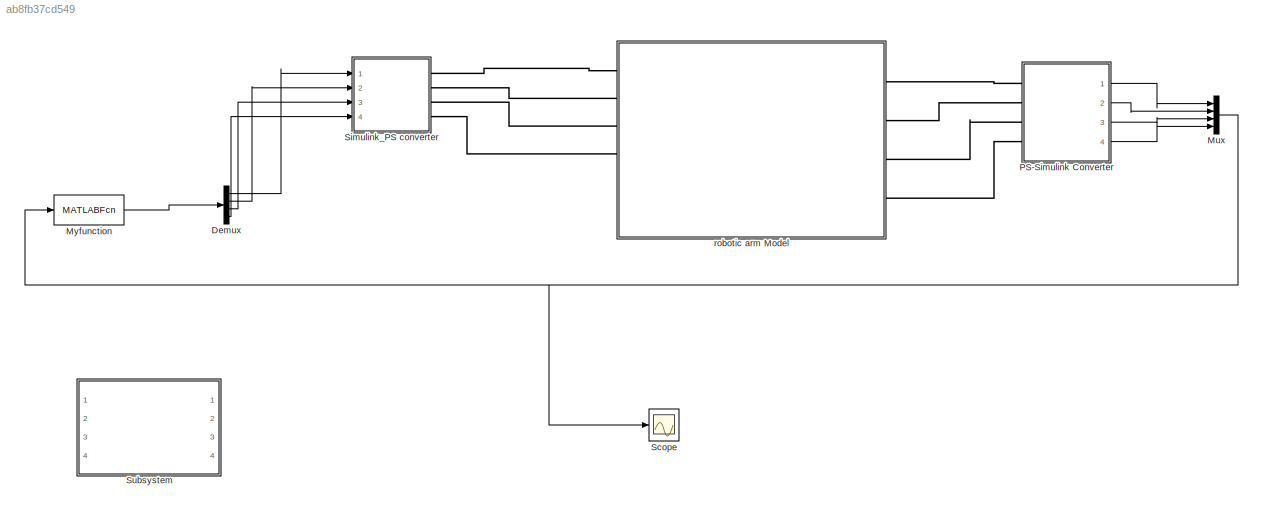
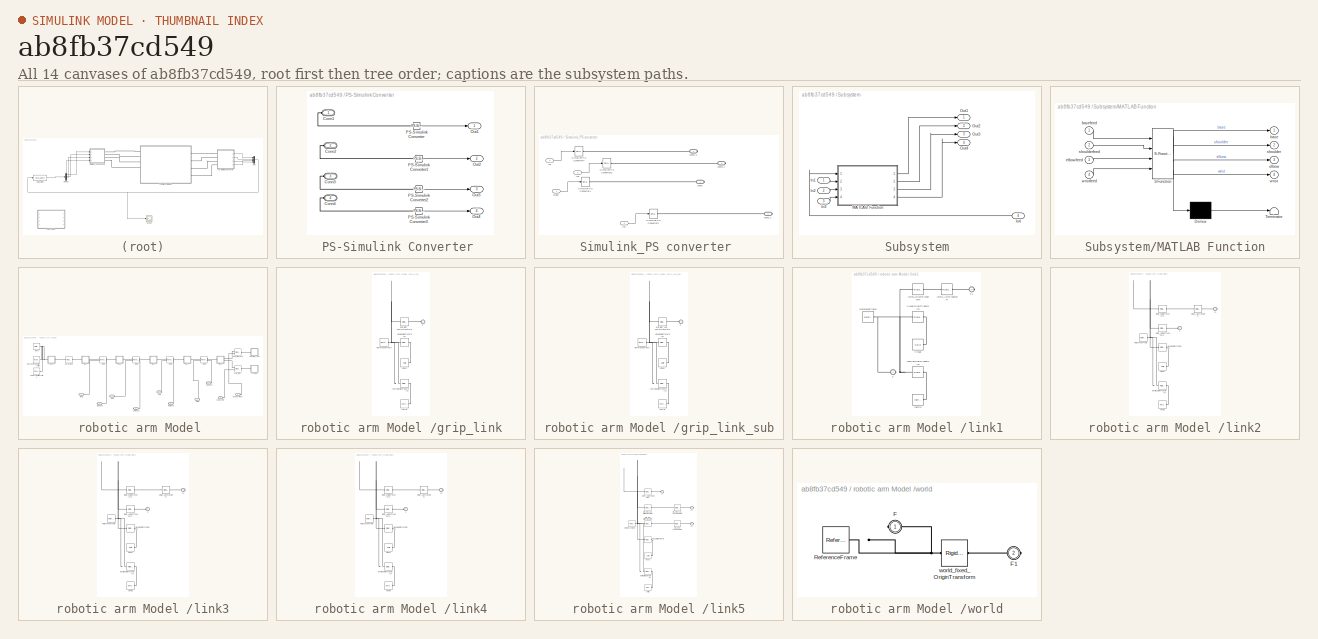
[diagram: thumbnail index - all 14 canvases of the model, root first then tree order]
MODEL slx_ab8fb37cd549
KIND model
CONFIG AbsTol = auto
CONFIG EnableMultiTasking = off
CONFIG FixedStep = auto
CONFIG MaxStep = auto
CONFIG MinStep = auto
CONFIG RelTol = 1e-3
CONFIG SampleTimeConstraint = Unconstrained
CONFIG Solver = VariableStepAuto
CONFIG SolverName = VariableStepAuto
CONFIG StartTime = 0.0
CONFIG StopTime = 10
BLOCK [Demux] Demux
  DisplayOption = bar
  Ports = [1, 4]
BLOCK [Mux] Mux
  DisplayOption = bar
  Ports = [4, 1]
BLOCK [MATLABFcn] Myfunction 
  MATLABFcn = fcn
  Output1D = off
  OutputDimensions = 4
  Ports = [1, 1]
BLOCK [SubSystem] PS-Simulink Converter 
  Ports = [0, 4, 0, 0, 0, 4]
  RequestExecContextInheritance = off
BLOCK [PMIOPort] PS-Simulink Converter /Conn1
  Side = Left
BLOCK [PMIOPort] PS-Simulink Converter /Conn2
  Port = 2
  Side = Left
BLOCK [PMIOPort] PS-Simulink Converter /Conn3
  Port = 3
  Side = Left
BLOCK [PMIOPort] PS-Simulink Converter /Conn4
  Port = 4
  Side = Left
BLOCK [Outport] PS-Simulink Converter /Out1
  IconDisplay = Port number
BLOCK [Outport] PS-Simulink Converter /Out2
  IconDisplay = Port number
  Port = 2
BLOCK [Outport] PS-Simulink Converter /Out3
  IconDisplay = Port number
  Port = 3
BLOCK [Outport] PS-Simulink Converter /Out4
  IconDisplay = Port number
  Port = 4
BLOCK [Reference] PS-Simulink Converter /PS-Simulink Converter  REF=nesl_utility/PS-Simulink
Converter
  Ports = [0, 1, 0, 0, 0, 1]
  SourceBlock = nesl_utility/PS-Simulink\nConverter
  SourceType = PS-Simulink\nConverter
BLOCK [Reference] PS-Simulink Converter /PS-Simulink Converter1  REF=nesl_utility/PS-Simulink
Converter
  Ports = [0, 1, 0, 0, 0, 1]
  SourceBlock = nesl_utility/PS-Simulink\nConverter
  SourceType = PS-Simulink\nConverter
BLOCK [Reference] PS-Simulink Converter /PS-Simulink Converter2  REF=nesl_utility/PS-Simulink
Converter
  Ports = [0, 1, 0, 0, 0, 1]
  SourceBlock = nesl_utility/PS-Simulink\nConverter
  SourceType = PS-Simulink\nConverter
BLOCK [Reference] PS-Simulink Converter /PS-Simulink Converter3  REF=nesl_utility/PS-Simulink
Converter
  Ports = [0, 1, 0, 0, 0, 1]
  SourceBlock = nesl_utility/PS-Simulink\nConverter
  SourceType = PS-Simulink\nConverter
BLOCK [Scope] Scope
  Floating = off
  NumInputPorts = 1
  Ports = [1]
  ScopeSpecificationString = Simulink.scopes.TimeScopeBlockCfg('CurrentConfiguration', extmgr.ConfigurationSet(extmgr.Configuration('Core','General UI',true),extmgr.Configuration('Core','Source UI',true),extmgr.Configuration('Sources','WiredSimulink',true),extmgr.Configuration('Visuals','Time Domain',true,'SerializedDisplays',{struct('MinYLimReal','4.0625','MaxYLimReal','63.4375','YLabelReal','','MinYLimMag','4.0625','MaxYLim...<+1419ch>
BLOCK [SubSystem] Simulink_PS converter 
  Ports = [4, 0, 0, 0, 0, 0, 4]
  RequestExecContextInheritance = off
BLOCK [Inport] Simulink_PS converter /Base
  IconDisplay = Port number
BLOCK [Inport] Simulink_PS converter /In2
  IconDisplay = Port number
  Port = 2
BLOCK [Inport] Simulink_PS converter /In3
  IconDisplay = Port number
  Port = 3
BLOCK [Inport] Simulink_PS converter /In4
  IconDisplay = Port number
  Port = 4
BLOCK [Reference] Simulink_PS converter /Simulink-PS Converter1  REF=nesl_utility/Simulink-PS
Converter
  Ports = [1, 0, 0, 0, 0, 0, 1]
  SourceBlock = nesl_utility/Simulink-PS\nConverter
  SourceType = Simulink-PS\nConverter
BLOCK [Reference] Simulink_PS converter /Simulink-PS Converter2  REF=nesl_utility/Simulink-PS
Converter
  Ports = [1, 0, 0, 0, 0, 0, 1]
  SourceBlock = nesl_utility/Simulink-PS\nConverter
  SourceType = Simulink-PS\nConverter
BLOCK [Reference] Simulink_PS converter /Simulink-PS Converter3  REF=nesl_utility/Simulink-PS
Converter
  Ports = [1, 0, 0, 0, 0, 0, 1]
  SourceBlock = nesl_utility/Simulink-PS\nConverter
  SourceType = Simulink-PS\nConverter
BLOCK [Reference] Simulink_PS converter /Simulink-PS Converter4  REF=nesl_utility/Simulink-PS
Converter
  Ports = [1, 0, 0, 0, 0, 0, 1]
  SourceBlock = nesl_utility/Simulink-PS\nConverter
  SourceType = Simulink-PS\nConverter
BLOCK [PMIOPort] Simulink_PS converter /conn1 
  Side = Right
BLOCK [PMIOPort] Simulink_PS converter /conn1 1
  Port = 2
  Side = Right
BLOCK [PMIOPort] Simulink_PS converter /conn1 2
  Port = 3
  Side = Right
BLOCK [PMIOPort] Simulink_PS converter /conn1 3
  Port = 4
  Side = Right
BLOCK [SubSystem] Subsystem
  Ports = [4, 4]
  RequestExecContextInheritance = off
BLOCK [Inport] Subsystem/In1
  IconDisplay = Port number
BLOCK [Inport] Subsystem/In2
  IconDisplay = Port number
  Port = 2
BLOCK [Inport] Subsystem/In3
  IconDisplay = Port number
  Port = 3
BLOCK [Inport] Subsystem/In4
  IconDisplay = Port number
  Port = 4
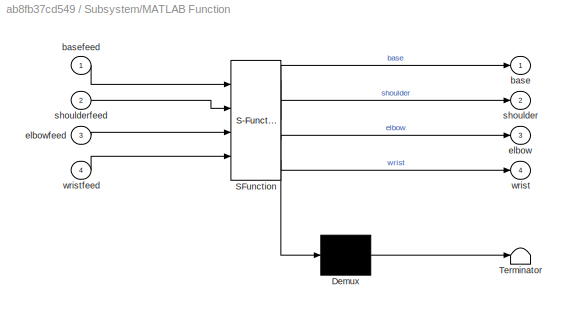
BLOCK [SubSystem] Subsystem/MATLAB Function
  ErrorFcn = Stateflow.Translate.translate
  PermitHierarchicalResolution = ExplicitOnly
  Ports = [4, 4]
  RequestExecContextInheritance = off
  SFBlockType = MATLAB Function
  TreatAsAtomicUnit = on
BLOCK [Demux] Subsystem/MATLAB Function/ Demux 
  Outputs = 1
  Ports = [1, 1]
BLOCK [S-Function] Subsystem/MATLAB Function/ SFunction 
  EnableBusSupport = on
  FunctionName = sf_sfun
  PortCounts = [4 5]
  Ports = [4, 5]
  SFcnIsStateOwnerBlock = off
  SFunctionDeploymentMode = off
  Tag = Stateflow S-Function physicalModel2016b 2
BLOCK [Terminator] Subsystem/MATLAB Function/ Terminator 
BLOCK [Outport] Subsystem/MATLAB Function/base
  IconDisplay = Port number
BLOCK [Inport] Subsystem/MATLAB Function/basefeed
  IconDisplay = Port number
BLOCK [Outport] Subsystem/MATLAB Function/elbow
  IconDisplay = Port number
  Port = 3
BLOCK [Inport] Subsystem/MATLAB Function/elbowfeed
  IconDisplay = Port number
  Port = 3
BLOCK [Outport] Subsystem/MATLAB Function/shoulder
  IconDisplay = Port number
  Port = 2
BLOCK [Inport] Subsystem/MATLAB Function/shoulderfeed
  IconDisplay = Port number
  Port = 2
BLOCK [Outport] Subsystem/MATLAB Function/wrist
  IconDisplay = Port number
  Port = 4
BLOCK [Inport] Subsystem/MATLAB Function/wristfeed
  IconDisplay = Port number
  Port = 4
BLOCK [Outport] Subsystem/Out1
  IconDisplay = Port number
BLOCK [Outport] Subsystem/Out2
  IconDisplay = Port number
  Port = 2
BLOCK [Outport] Subsystem/Out3
  IconDisplay = Port number
  Port = 3
BLOCK [Outport] Subsystem/Out4
  IconDisplay = Port number
  Port = 4
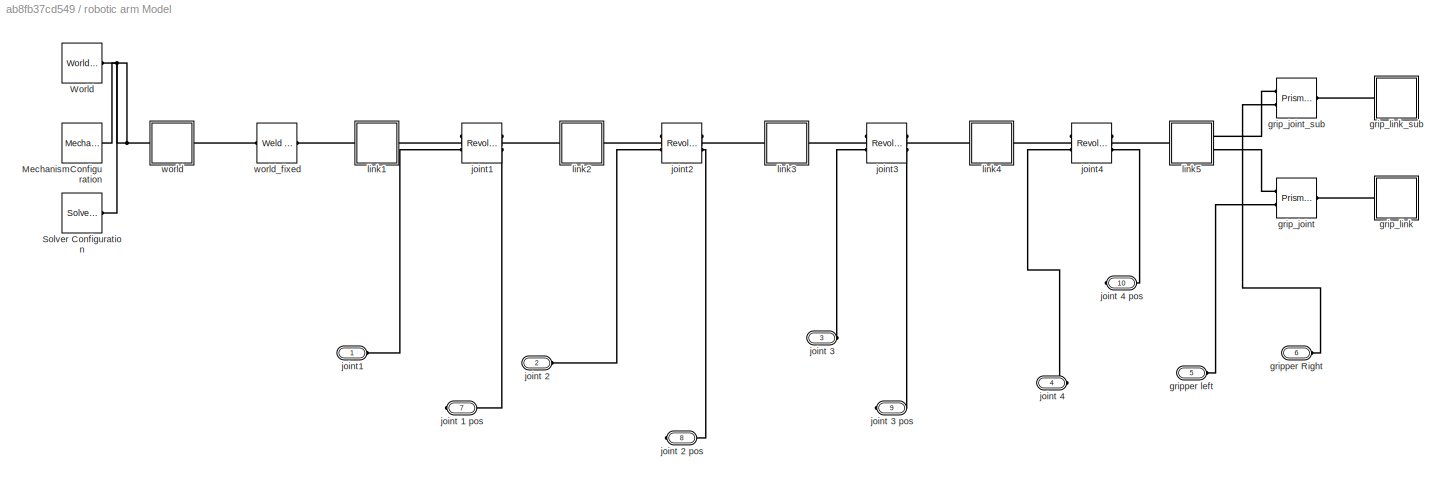
BLOCK [SubSystem] robotic arm Model 
  Ports = [0, 0, 0, 0, 0, 6, 4]
  RequestExecContextInheritance = off
BLOCK [Reference] robotic arm Model /MechanismConfiguration  REF=sm_lib/Utilities/Mechanism
Configuration
  Ports = [0, 0, 0, 0, 0, 0, 1]
  SourceBlock = sm_lib/Utilities/Mechanism\nConfiguration
  SourceType = Mechanism\nConfiguration
BLOCK [Reference] robotic arm Model /Solver Configuration  REF=nesl_utility/Solver
Configuration
  Ports = [0, 0, 0, 0, 0, 0, 1]
  SourceBlock = nesl_utility/Solver\nConfiguration
  SourceType = Solver\nConfiguration
BLOCK [Reference] robotic arm Model /World  REF=sm_lib/Frames and
Transforms/World Frame
  Ports = [0, 0, 0, 0, 0, 0, 1]
  SourceBlock = sm_lib/Frames and\nTransforms/World Frame
  SourceType = World Frame
BLOCK [Reference] robotic arm Model /grip_joint  REF=sm_lib/Joints/Prismatic
Joint
  Ports = [0, 0, 0, 0, 0, 2, 1]
  SourceBlock = sm_lib/Joints/Prismatic\nJoint
  SourceType = Prismatic\nJoint
BLOCK [Reference] robotic arm Model /grip_joint_sub  REF=sm_lib/Joints/Prismatic
Joint
  Ports = [0, 0, 0, 0, 0, 2, 1]
  SourceBlock = sm_lib/Joints/Prismatic\nJoint
  SourceType = Prismatic\nJoint
BLOCK [SubSystem] robotic arm Model /grip_link
  Ports = [0, 0, 0, 0, 0, 1]
  RequestExecContextInheritance = off
BLOCK [PMIOPort] robotic arm Model /grip_link/F
  Side = Left
BLOCK [Reference] robotic arm Model /grip_link/Inertia  REF=sm_lib/Body Elements/Inertia
  Ports = [0, 0, 0, 0, 0, 0, 1]
  SourceBlock = sm_lib/Body Elements/Inertia
  SourceType = Inertia
BLOCK [Reference] robotic arm Model /grip_link/InertiaOriginTransform  REF=sm_lib/Frames and
Transforms/Rigid
Transform
  Ports = [0, 0, 0, 0, 0, 1, 1]
  SourceBlock = sm_lib/Frames and\nTransforms/Rigid\nTransform
  SourceType = Rigid\nTransform
BLOCK [Reference] robotic arm Model /grip_link/ReferenceFrame  REF=sm_lib/Frames and
Transforms/Reference
Frame
  Ports = [0, 0, 0, 0, 0, 0, 1]
  SourceBlock = sm_lib/Frames and\nTransforms/Reference\nFrame
  SourceType = Reference\nFrame
BLOCK [Reference] robotic arm Model /grip_link/Visual  REF=sm_lib/Body Elements/Solid
  Ports = [0, 0, 0, 0, 0, 0, 1]
  SourceBlock = sm_lib/Body Elements/Solid
  SourceType = Solid
BLOCK [Reference] robotic arm Model /grip_link/VisualOriginTransform  REF=sm_lib/Frames and
Transforms/Rigid
Transform
  Ports = [0, 0, 0, 0, 0, 1, 1]
  SourceBlock = sm_lib/Frames and\nTransforms/Rigid\nTransform
  SourceType = Rigid\nTransform
BLOCK [Reference] robotic arm Model /grip_link/grip_joint_AxisInvTransform  REF=sm_lib/Frames and
Transforms/Rigid
Transform
  Ports = [0, 0, 0, 0, 0, 1, 1]
  SourceBlock = sm_lib/Frames and\nTransforms/Rigid\nTransform
  SourceType = Rigid\nTransform
BLOCK [SubSystem] robotic arm Model /grip_link_sub
  Ports = [0, 0, 0, 0, 0, 1]
  RequestExecContextInheritance = off
BLOCK [PMIOPort] robotic arm Model /grip_link_sub/F
  Side = Left
BLOCK [Reference] robotic arm Model /grip_link_sub/Inertia  REF=sm_lib/Body Elements/Inertia
  Ports = [0, 0, 0, 0, 0, 0, 1]
  SourceBlock = sm_lib/Body Elements/Inertia
  SourceType = Inertia
BLOCK [Reference] robotic arm Model /grip_link_sub/InertiaOriginTransform  REF=sm_lib/Frames and
Transforms/Rigid
Transform
  Ports = [0, 0, 0, 0, 0, 1, 1]
  SourceBlock = sm_lib/Frames and\nTransforms/Rigid\nTransform
  SourceType = Rigid\nTransform
BLOCK [Reference] robotic arm Model /grip_link_sub/ReferenceFrame  REF=sm_lib/Frames and
Transforms/Reference
Frame
  Ports = [0, 0, 0, 0, 0, 0, 1]
  SourceBlock = sm_lib/Frames and\nTransforms/Reference\nFrame
  SourceType = Reference\nFrame
BLOCK [Reference] robotic arm Model /grip_link_sub/Visual  REF=sm_lib/Body Elements/Solid
  Ports = [0, 0, 0, 0, 0, 0, 1]
  SourceBlock = sm_lib/Body Elements/Solid
  SourceType = Solid
BLOCK [Reference] robotic arm Model /grip_link_sub/VisualOriginTransform  REF=sm_lib/Frames and
Transforms/Rigid
Transform
  Ports = [0, 0, 0, 0, 0, 1, 1]
  SourceBlock = sm_lib/Frames and\nTransforms/Rigid\nTransform
  SourceType = Rigid\nTransform
BLOCK [Reference] robotic arm Model /grip_link_sub/grip_joint_sub_AxisInvTransform  REF=sm_lib/Frames and
Transforms/Rigid
Transform
  Ports = [0, 0, 0, 0, 0, 1, 1]
  SourceBlock = sm_lib/Frames and\nTransforms/Rigid\nTransform
  SourceType = Rigid\nTransform
BLOCK [PMIOPort] robotic arm Model /gripper Right
  Port = 6
  Side = Left
BLOCK [PMIOPort] robotic arm Model /gripper left
  Port = 5
  Side = Left
BLOCK [PMIOPort] robotic arm Model /joint 1 pos 
  Port = 7
  Side = Right
BLOCK [PMIOPort] robotic arm Model /joint 2
  Port = 2
  Side = Left
BLOCK [PMIOPort] robotic arm Model /joint 2 pos 
  Port = 8
  Side = Right
BLOCK [PMIOPort] robotic arm Model /joint 3 
  Port = 3
  Side = Left
BLOCK [PMIOPort] robotic arm Model /joint 3 pos
  Port = 9
  Side = Right
BLOCK [PMIOPort] robotic arm Model /joint 4 
  Port = 4
  Side = Left
BLOCK [PMIOPort] robotic arm Model /joint 4 pos 
  Port = 10
  Side = Right
BLOCK [Reference] robotic arm Model /joint1  REF=sm_lib/Joints/Revolute Joint
  Ports = [0, 0, 0, 0, 0, 2, 2]
  SourceBlock = sm_lib/Joints/Revolute Joint
  SourceType = Revolute Joint
BLOCK [PMIOPort] robotic arm Model /joint1 
  Side = Left
BLOCK [Reference] robotic arm Model /joint2  REF=sm_lib/Joints/Revolute Joint
  Ports = [0, 0, 0, 0, 0, 2, 2]
  SourceBlock = sm_lib/Joints/Revolute Joint
  SourceType = Revolute Joint
BLOCK [Reference] robotic arm Model /joint3  REF=sm_lib/Joints/Revolute Joint
  Ports = [0, 0, 0, 0, 0, 2, 2]
  SourceBlock = sm_lib/Joints/Revolute Joint
  SourceType = Revolute Joint
BLOCK [Reference] robotic arm Model /joint4  REF=sm_lib/Joints/Revolute Joint
  Ports = [0, 0, 0, 0, 0, 2, 2]
  SourceBlock = sm_lib/Joints/Revolute Joint
  SourceType = Revolute Joint
BLOCK [SubSystem] robotic arm Model /link1
  Ports = [0, 0, 0, 0, 0, 1, 1]
  RequestExecContextInheritance = off
BLOCK [PMIOPort] robotic arm Model /link1/F
  Side = Left
BLOCK [PMIOPort] robotic arm Model /link1/F1
  Port = 2
  Side = Right
BLOCK [Reference] robotic arm Model /link1/Inertia  REF=sm_lib/Body Elements/Inertia
  Ports = [0, 0, 0, 0, 0, 0, 1]
  SourceBlock = sm_lib/Body Elements/Inertia
  SourceType = Inertia
BLOCK [Reference] robotic arm Model /link1/InertiaOriginTransform  REF=sm_lib/Frames and
Transforms/Rigid
Transform
  Ports = [0, 0, 0, 0, 0, 1, 1]
  SourceBlock = sm_lib/Frames and\nTransforms/Rigid\nTransform
  SourceType = Rigid\nTransform
BLOCK [Reference] robotic arm Model /link1/ReferenceFrame  REF=sm_lib/Frames and
Transforms/Reference
Frame
  Ports = [0, 0, 0, 0, 0, 0, 1]
  SourceBlock = sm_lib/Frames and\nTransforms/Reference\nFrame
  SourceType = Reference\nFrame
BLOCK [Reference] robotic arm Model /link1/Visual  REF=sm_lib/Body Elements/Solid
  Ports = [0, 0, 0, 0, 0, 0, 1]
  SourceBlock = sm_lib/Body Elements/Solid
  SourceType = Solid
BLOCK [Reference] robotic arm Model /link1/VisualOriginTransform  REF=sm_lib/Frames and
Transforms/Rigid
Transform
  Ports = [0, 0, 0, 0, 0, 1, 1]
  SourceBlock = sm_lib/Frames and\nTransforms/Rigid\nTransform
  SourceType = Rigid\nTransform
BLOCK [Reference] robotic arm Model /link1/joint1_AxisTransform  REF=sm_lib/Frames and
Transforms/Rigid
Transform
  Ports = [0, 0, 0, 0, 0, 1, 1]
  SourceBlock = sm_lib/Frames and\nTransforms/Rigid\nTransform
  SourceType = Rigid\nTransform
BLOCK [Reference] robotic arm Model /link1/joint1_OriginTransform  REF=sm_lib/Frames and
Transforms/Rigid
Transform
  Ports = [0, 0, 0, 0, 0, 1, 1]
  SourceBlock = sm_lib/Frames and\nTransforms/Rigid\nTransform
  SourceType = Rigid\nTransform
BLOCK [SubSystem] robotic arm Model /link2
  Ports = [0, 0, 0, 0, 0, 1, 1]
  RequestExecContextInheritance = off
BLOCK [PMIOPort] robotic arm Model /link2/F
  Side = Left
BLOCK [PMIOPort] robotic arm Model /link2/F1
  Port = 2
  Side = Right
BLOCK [Reference] robotic arm Model /link2/Inertia  REF=sm_lib/Body Elements/Inertia
  Ports = [0, 0, 0, 0, 0, 0, 1]
  SourceBlock = sm_lib/Body Elements/Inertia
  SourceType = Inertia
BLOCK [Reference] robotic arm Model /link2/InertiaOriginTransform  REF=sm_lib/Frames and
Transforms/Rigid
Transform
  Ports = [0, 0, 0, 0, 0, 1, 1]
  SourceBlock = sm_lib/Frames and\nTransforms/Rigid\nTransform
  SourceType = Rigid\nTransform
BLOCK [Reference] robotic arm Model /link2/ReferenceFrame  REF=sm_lib/Frames and
Transforms/Reference
Frame
  Ports = [0, 0, 0, 0, 0, 0, 1]
  SourceBlock = sm_lib/Frames and\nTransforms/Reference\nFrame
  SourceType = Reference\nFrame
BLOCK [Reference] robotic arm Model /link2/Visual  REF=sm_lib/Body Elements/Solid
  Ports = [0, 0, 0, 0, 0, 0, 1]
  SourceBlock = sm_lib/Body Elements/Solid
  SourceType = Solid
BLOCK [Reference] robotic arm Model /link2/VisualOriginTransform  REF=sm_lib/Frames and
Transforms/Rigid
Transform
  Ports = [0, 0, 0, 0, 0, 1, 1]
  SourceBlock = sm_lib/Frames and\nTransforms/Rigid\nTransform
  SourceType = Rigid\nTransform
BLOCK [Reference] robotic arm Model /link2/joint1_AxisInvTransform  REF=sm_lib/Frames and
Transforms/Rigid
Transform
  Ports = [0, 0, 0, 0, 0, 1, 1]
  SourceBlock = sm_lib/Frames and\nTransforms/Rigid\nTransform
  SourceType = Rigid\nTransform
BLOCK [Reference] robotic arm Model /link2/joint2_AxisTransform  REF=sm_lib/Frames and
Transforms/Rigid
Transform
  Ports = [0, 0, 0, 0, 0, 1, 1]
  SourceBlock = sm_lib/Frames and\nTransforms/Rigid\nTransform
  SourceType = Rigid\nTransform
BLOCK [Reference] robotic arm Model /link2/joint2_OriginTransform  REF=sm_lib/Frames and
Transforms/Rigid
Transform
  Ports = [0, 0, 0, 0, 0, 1, 1]
  SourceBlock = sm_lib/Frames and\nTransforms/Rigid\nTransform
  SourceType = Rigid\nTransform
BLOCK [SubSystem] robotic arm Model /link3
  Ports = [0, 0, 0, 0, 0, 1, 1]
  RequestExecContextInheritance = off
BLOCK [PMIOPort] robotic arm Model /link3/F
  Side = Left
BLOCK [PMIOPort] robotic arm Model /link3/F1
  Port = 2
  Side = Right
BLOCK [Reference] robotic arm Model /link3/Inertia  REF=sm_lib/Body Elements/Inertia
  Ports = [0, 0, 0, 0, 0, 0, 1]
  SourceBlock = sm_lib/Body Elements/Inertia
  SourceType = Inertia
BLOCK [Reference] robotic arm Model /link3/InertiaOriginTransform  REF=sm_lib/Frames and
Transforms/Rigid
Transform
  Ports = [0, 0, 0, 0, 0, 1, 1]
  SourceBlock = sm_lib/Frames and\nTransforms/Rigid\nTransform
  SourceType = Rigid\nTransform
BLOCK [Reference] robotic arm Model /link3/ReferenceFrame  REF=sm_lib/Frames and
Transforms/Reference
Frame
  Ports = [0, 0, 0, 0, 0, 0, 1]
  SourceBlock = sm_lib/Frames and\nTransforms/Reference\nFrame
  SourceType = Reference\nFrame
BLOCK [Reference] robotic arm Model /link3/Visual  REF=sm_lib/Body Elements/Solid
  Ports = [0, 0, 0, 0, 0, 0, 1]
  SourceBlock = sm_lib/Body Elements/Solid
  SourceType = Solid
BLOCK [Reference] robotic arm Model /link3/VisualOriginTransform  REF=sm_lib/Frames and
Transforms/Rigid
Transform
  Ports = [0, 0, 0, 0, 0, 1, 1]
  SourceBlock = sm_lib/Frames and\nTransforms/Rigid\nTransform
  SourceType = Rigid\nTransform
BLOCK [Reference] robotic arm Model /link3/joint2_AxisInvTransform  REF=sm_lib/Frames and
Transforms/Rigid
Transform
  Ports = [0, 0, 0, 0, 0, 1, 1]
  SourceBlock = sm_lib/Frames and\nTransforms/Rigid\nTransform
  SourceType = Rigid\nTransform
BLOCK [Reference] robotic arm Model /link3/joint3_AxisTransform  REF=sm_lib/Frames and
Transforms/Rigid
Transform
  Ports = [0, 0, 0, 0, 0, 1, 1]
  SourceBlock = sm_lib/Frames and\nTransforms/Rigid\nTransform
  SourceType = Rigid\nTransform
BLOCK [Reference] robotic arm Model /link3/joint3_OriginTransform  REF=sm_lib/Frames and
Transforms/Rigid
Transform
  Ports = [0, 0, 0, 0, 0, 1, 1]
  SourceBlock = sm_lib/Frames and\nTransforms/Rigid\nTransform
  SourceType = Rigid\nTransform
BLOCK [SubSystem] robotic arm Model /link4
  Ports = [0, 0, 0, 0, 0, 1, 1]
  RequestExecContextInheritance = off
BLOCK [PMIOPort] robotic arm Model /link4/F
  Side = Left
BLOCK [PMIOPort] robotic arm Model /link4/F1
  Port = 2
  Side = Right
BLOCK [Reference] robotic arm Model /link4/Inertia  REF=sm_lib/Body Elements/Inertia
  Ports = [0, 0, 0, 0, 0, 0, 1]
  SourceBlock = sm_lib/Body Elements/Inertia
  SourceType = Inertia
BLOCK [Reference] robotic arm Model /link4/InertiaOriginTransform  REF=sm_lib/Frames and
Transforms/Rigid
Transform
  Ports = [0, 0, 0, 0, 0, 1, 1]
  SourceBlock = sm_lib/Frames and\nTransforms/Rigid\nTransform
  SourceType = Rigid\nTransform
BLOCK [Reference] robotic arm Model /link4/ReferenceFrame  REF=sm_lib/Frames and
Transforms/Reference
Frame
  Ports = [0, 0, 0, 0, 0, 0, 1]
  SourceBlock = sm_lib/Frames and\nTransforms/Reference\nFrame
  SourceType = Reference\nFrame
BLOCK [Reference] robotic arm Model /link4/Visual  REF=sm_lib/Body Elements/Solid
  Ports = [0, 0, 0, 0, 0, 0, 1]
  SourceBlock = sm_lib/Body Elements/Solid
  SourceType = Solid
BLOCK [Reference] robotic arm Model /link4/VisualOriginTransform  REF=sm_lib/Frames and
Transforms/Rigid
Transform
  Ports = [0, 0, 0, 0, 0, 1, 1]
  SourceBlock = sm_lib/Frames and\nTransforms/Rigid\nTransform
  SourceType = Rigid\nTransform
BLOCK [Reference] robotic arm Model /link4/joint3_AxisInvTransform  REF=sm_lib/Frames and
Transforms/Rigid
Transform
  Ports = [0, 0, 0, 0, 0, 1, 1]
  SourceBlock = sm_lib/Frames and\nTransforms/Rigid\nTransform
  SourceType = Rigid\nTransform
BLOCK [Reference] robotic arm Model /link4/joint4_AxisTransform  REF=sm_lib/Frames and
Transforms/Rigid
Transform
  Ports = [0, 0, 0, 0, 0, 1, 1]
  SourceBlock = sm_lib/Frames and\nTransforms/Rigid\nTransform
  SourceType = Rigid\nTransform
BLOCK [Reference] robotic arm Model /link4/joint4_OriginTransform  REF=sm_lib/Frames and
Transforms/Rigid
Transform
  Ports = [0, 0, 0, 0, 0, 1, 1]
  SourceBlock = sm_lib/Frames and\nTransforms/Rigid\nTransform
  SourceType = Rigid\nTransform
BLOCK [SubSystem] robotic arm Model /link5
  Ports = [0, 0, 0, 0, 0, 1, 2]
  RequestExecContextInheritance = off
BLOCK [PMIOPort] robotic arm Model /link5/F
  Side = Left
BLOCK [PMIOPort] robotic arm Model /link5/F1
  Port = 3
  Side = Right
BLOCK [PMIOPort] robotic arm Model /link5/F2
  Port = 2
  Side = Right
BLOCK [Reference] robotic arm Model /link5/Inertia  REF=sm_lib/Body Elements/Inertia
  Ports = [0, 0, 0, 0, 0, 0, 1]
  SourceBlock = sm_lib/Body Elements/Inertia
  SourceType = Inertia
BLOCK [Reference] robotic arm Model /link5/InertiaOriginTransform  REF=sm_lib/Frames and
Transforms/Rigid
Transform
  Ports = [0, 0, 0, 0, 0, 1, 1]
  SourceBlock = sm_lib/Frames and\nTransforms/Rigid\nTransform
  SourceType = Rigid\nTransform
BLOCK [Reference] robotic arm Model /link5/ReferenceFrame  REF=sm_lib/Frames and
Transforms/Reference
Frame
  Ports = [0, 0, 0, 0, 0, 0, 1]
  SourceBlock = sm_lib/Frames and\nTransforms/Reference\nFrame
  SourceType = Reference\nFrame
BLOCK [Reference] robotic arm Model /link5/Visual  REF=sm_lib/Body Elements/Solid
  Ports = [0, 0, 0, 0, 0, 0, 1]
  SourceBlock = sm_lib/Body Elements/Solid
  SourceType = Solid
BLOCK [Reference] robotic arm Model /link5/VisualOriginTransform  REF=sm_lib/Frames and
Transforms/Rigid
Transform
  Ports = [0, 0, 0, 0, 0, 1, 1]
  SourceBlock = sm_lib/Frames and\nTransforms/Rigid\nTransform
  SourceType = Rigid\nTransform
BLOCK [Reference] robotic arm Model /link5/grip_joint_AxisTransform  REF=sm_lib/Frames and
Transforms/Rigid
Transform
  Ports = [0, 0, 0, 0, 0, 1, 1]
  SourceBlock = sm_lib/Frames and\nTransforms/Rigid\nTransform
  SourceType = Rigid\nTransform
BLOCK [Reference] robotic arm Model /link5/grip_joint_OriginTransform  REF=sm_lib/Frames and
Transforms/Rigid
Transform
  Ports = [0, 0, 0, 0, 0, 1, 1]
  SourceBlock = sm_lib/Frames and\nTransforms/Rigid\nTransform
  SourceType = Rigid\nTransform
BLOCK [Reference] robotic arm Model /link5/grip_joint_sub_AxisTransform  REF=sm_lib/Frames and
Transforms/Rigid
Transform
  Ports = [0, 0, 0, 0, 0, 1, 1]
  SourceBlock = sm_lib/Frames and\nTransforms/Rigid\nTransform
  SourceType = Rigid\nTransform
BLOCK [Reference] robotic arm Model /link5/grip_joint_sub_OriginTransform  REF=sm_lib/Frames and
Transforms/Rigid
Transform
  Ports = [0, 0, 0, 0, 0, 1, 1]
  SourceBlock = sm_lib/Frames and\nTransforms/Rigid\nTransform
  SourceType = Rigid\nTransform
BLOCK [Reference] robotic arm Model /link5/joint4_AxisInvTransform  REF=sm_lib/Frames and
Transforms/Rigid
Transform
  Ports = [0, 0, 0, 0, 0, 1, 1]
  SourceBlock = sm_lib/Frames and\nTransforms/Rigid\nTransform
  SourceType = Rigid\nTransform
BLOCK [SubSystem] robotic arm Model /world
  Ports = [0, 0, 0, 0, 0, 1, 1]
  RequestExecContextInheritance = off
BLOCK [PMIOPort] robotic arm Model /world/F
  Side = Left
BLOCK [PMIOPort] robotic arm Model /world/F1
  Port = 2
  Side = Right
BLOCK [Reference] robotic arm Model /world/ReferenceFrame  REF=sm_lib/Frames and
Transforms/Reference
Frame
  Ports = [0, 0, 0, 0, 0, 0, 1]
  SourceBlock = sm_lib/Frames and\nTransforms/Reference\nFrame
  SourceType = Reference\nFrame
BLOCK [Reference] robotic arm Model /world/world_fixed_OriginTransform  REF=sm_lib/Frames and
Transforms/Rigid
Transform
  Ports = [0, 0, 0, 0, 0, 1, 1]
  SourceBlock = sm_lib/Frames and\nTransforms/Rigid\nTransform
  SourceType = Rigid\nTransform
BLOCK [Reference] robotic arm Model /world_fixed  REF=sm_lib/Joints/Weld Joint
  Ports = [0, 0, 0, 0, 0, 1, 1]
  SourceBlock = sm_lib/Joints/Weld Joint
  SourceType = Weld Joint
LINE Demux:1 -> Simulink_PS converter :1
LINE Demux:2 -> Simulink_PS converter :2
LINE Demux:3 -> Simulink_PS converter :3
LINE Demux:4 -> Simulink_PS converter :4
NET Mux:1 -> Myfunction :1, Scope:1
LINE Myfunction :1 -> Demux:1
LINE PS-Simulink Converter /PS-Simulink Converter1:1 -> PS-Simulink Converter /Out2:1
LINE PS-Simulink Converter /PS-Simulink Converter2:1 -> PS-Simulink Converter /Out3:1
LINE PS-Simulink Converter /PS-Simulink Converter3:1 -> PS-Simulink Converter /Out4:1
LINE PS-Simulink Converter /PS-Simulink Converter:1 -> PS-Simulink Converter /Out1:1
LINE PS-Simulink Converter :1 -> Mux:1
LINE PS-Simulink Converter :2 -> Mux:2
LINE PS-Simulink Converter :3 -> Mux:3
LINE PS-Simulink Converter :4 -> Mux:4
LINE Simulink_PS converter /Base:1 -> Simulink_PS converter /Simulink-PS Converter1:1
LINE Simulink_PS converter /In2:1 -> Simulink_PS converter /Simulink-PS Converter2:1
LINE Simulink_PS converter /In3:1 -> Simulink_PS converter /Simulink-PS Converter3:1
LINE Simulink_PS converter /In4:1 -> Simulink_PS converter /Simulink-PS Converter4:1
LINE Subsystem/In1:1 -> Subsystem/MATLAB Function:2
LINE Subsystem/In2:1 -> Subsystem/MATLAB Function:3
LINE Subsystem/In3:1 -> Subsystem/MATLAB Function:4
LINE Subsystem/In4:1 -> Subsystem/MATLAB Function:1
LINE Subsystem/MATLAB Function:1 -> Subsystem/Out1:1
LINE Subsystem/MATLAB Function:2 -> Subsystem/Out2:1
LINE Subsystem/MATLAB Function:3 -> Subsystem/Out3:1
LINE Subsystem/MATLAB Function:4 -> Subsystem/Out4:1
PLINE PS-Simulink Converter /Conn1:RConn1 -- PS-Simulink Converter /PS-Simulink Converter:LConn1
PLINE PS-Simulink Converter /Conn2:RConn1 -- PS-Simulink Converter /PS-Simulink Converter1:LConn1
PLINE PS-Simulink Converter /Conn3:RConn1 -- PS-Simulink Converter /PS-Simulink Converter2:LConn1
PLINE PS-Simulink Converter /Conn4:RConn1 -- PS-Simulink Converter /PS-Simulink Converter3:LConn1
PLINE PS-Simulink Converter :LConn1 -- robotic arm Model :RConn1
PLINE PS-Simulink Converter :LConn2 -- robotic arm Model :RConn2
PLINE PS-Simulink Converter :LConn3 -- robotic arm Model :RConn3
PLINE PS-Simulink Converter :LConn4 -- robotic arm Model :RConn4
PLINE Simulink_PS converter /Simulink-PS Converter1:RConn1 -- Simulink_PS converter /conn1 :RConn1
PLINE Simulink_PS converter /Simulink-PS Converter2:RConn1 -- Simulink_PS converter /conn1 1:RConn1
PLINE Simulink_PS converter /Simulink-PS Converter3:RConn1 -- Simulink_PS converter /conn1 2:RConn1
PLINE Simulink_PS converter /Simulink-PS Converter4:RConn1 -- Simulink_PS converter /conn1 3:RConn1
PLINE Simulink_PS converter :RConn1 -- robotic arm Model :LConn1
PLINE Simulink_PS converter :RConn2 -- robotic arm Model :LConn2
PLINE Simulink_PS converter :RConn3 -- robotic arm Model :LConn3
PLINE Simulink_PS converter :RConn4 -- robotic arm Model :LConn4
PNET net1: robotic arm Model /MechanismConfiguration:RConn1 -- robotic arm Model /Solver Configuration:RConn1 -- robotic arm Model /World:RConn1 -- robotic arm Model /world:LConn1
PLINE robotic arm Model /grip_joint:LConn1 -- robotic arm Model /link5:RConn2
PLINE robotic arm Model /grip_joint:LConn2 -- robotic arm Model /gripper left:RConn1
PLINE robotic arm Model /grip_joint:RConn1 -- robotic arm Model /grip_link:LConn1
PLINE robotic arm Model /grip_joint_sub:LConn1 -- robotic arm Model /link5:RConn1
PLINE robotic arm Model /grip_joint_sub:LConn2 -- robotic arm Model /gripper Right:RConn1
PLINE robotic arm Model /grip_joint_sub:RConn1 -- robotic arm Model /grip_link_sub:LConn1
PLINE robotic arm Model /grip_link/F:RConn1 -- robotic arm Model /grip_link/grip_joint_AxisInvTransform:RConn1
PLINE robotic arm Model /grip_link/Inertia:RConn1 -- robotic arm Model /grip_link/InertiaOriginTransform:RConn1
PNET net2: robotic arm Model /grip_link/InertiaOriginTransform:LConn1 -- robotic arm Model /grip_link/ReferenceFrame:RConn1 -- robotic arm Model /grip_link/VisualOriginTransform:LConn1 -- robotic arm Model /grip_link/grip_joint_AxisInvTransform:LConn1
PLINE robotic arm Model /grip_link/Visual:RConn1 -- robotic arm Model /grip_link/VisualOriginTransform:RConn1
PLINE robotic arm Model /grip_link_sub/F:RConn1 -- robotic arm Model /grip_link_sub/grip_joint_sub_AxisInvTransform:RConn1
PLINE robotic arm Model /grip_link_sub/Inertia:RConn1 -- robotic arm Model /grip_link_sub/InertiaOriginTransform:RConn1
PNET net3: robotic arm Model /grip_link_sub/InertiaOriginTransform:LConn1 -- robotic arm Model /grip_link_sub/ReferenceFrame:RConn1 -- robotic arm Model /grip_link_sub/VisualOriginTransform:LConn1 -- robotic arm Model /grip_link_sub/grip_joint_sub_AxisInvTransform:LConn1
PLINE robotic arm Model /grip_link_sub/Visual:RConn1 -- robotic arm Model /grip_link_sub/VisualOriginTransform:RConn1
PLINE robotic arm Model /joint 1 pos :RConn1 -- robotic arm Model /joint1:RConn2
PLINE robotic arm Model /joint 2 pos :RConn1 -- robotic arm Model /joint2:RConn2
PLINE robotic arm Model /joint 2:RConn1 -- robotic arm Model /joint2:LConn2
PLINE robotic arm Model /joint 3 :RConn1 -- robotic arm Model /joint3:LConn2
PLINE robotic arm Model /joint 3 pos:RConn1 -- robotic arm Model /joint3:RConn2
PLINE robotic arm Model /joint 4 :RConn1 -- robotic arm Model /joint4:LConn2
PLINE robotic arm Model /joint 4 pos :RConn1 -- robotic arm Model /joint4:RConn2
PLINE robotic arm Model /joint1 :RConn1 -- robotic arm Model /joint1:LConn2
PLINE robotic arm Model /joint1:LConn1 -- robotic arm Model /link1:RConn1
PLINE robotic arm Model /joint1:RConn1 -- robotic arm Model /link2:LConn1
PLINE robotic arm Model /joint2:LConn1 -- robotic arm Model /link2:RConn1
PLINE robotic arm Model /joint2:RConn1 -- robotic arm Model /link3:LConn1
PLINE robotic arm Model /joint3:LConn1 -- robotic arm Model /link3:RConn1
PLINE robotic arm Model /joint3:RConn1 -- robotic arm Model /link4:LConn1
PLINE robotic arm Model /joint4:LConn1 -- robotic arm Model /link4:RConn1
PLINE robotic arm Model /joint4:RConn1 -- robotic arm Model /link5:LConn1
PLINE robotic arm Model /link1/F1:RConn1 -- robotic arm Model /link1/joint1_AxisTransform:RConn1
PNET net4: robotic arm Model /link1/F:RConn1 -- robotic arm Model /link1/InertiaOriginTransform:LConn1 -- robotic arm Model /link1/ReferenceFrame:RConn1 -- robotic arm Model /link1/VisualOriginTransform:LConn1 -- robotic arm Model /link1/joint1_OriginTransform:LConn1
PLINE robotic arm Model /link1/Inertia:RConn1 -- robotic arm Model /link1/InertiaOriginTransform:RConn1
PLINE robotic arm Model /link1/Visual:RConn1 -- robotic arm Model /link1/VisualOriginTransform:RConn1
PLINE robotic arm Model /link1/joint1_AxisTransform:LConn1 -- robotic arm Model /link1/joint1_OriginTransform:RConn1
PLINE robotic arm Model /link1:LConn1 -- robotic arm Model /world_fixed:RConn1
PLINE robotic arm Model /link2/F1:RConn1 -- robotic arm Model /link2/joint2_AxisTransform:RConn1
PLINE robotic arm Model /link2/F:RConn1 -- robotic arm Model /link2/joint1_AxisInvTransform:RConn1
PLINE robotic arm Model /link2/Inertia:RConn1 -- robotic arm Model /link2/InertiaOriginTransform:RConn1
PNET net5: robotic arm Model /link2/InertiaOriginTransform:LConn1 -- robotic arm Model /link2/ReferenceFrame:RConn1 -- robotic arm Model /link2/VisualOriginTransform:LConn1 -- robotic arm Model /link2/joint1_AxisInvTransform:LConn1 -- robotic arm Model /link2/joint2_OriginTransform:LConn1
PLINE robotic arm Model /link2/Visual:RConn1 -- robotic arm Model /link2/VisualOriginTransform:RConn1
PLINE robotic arm Model /link2/joint2_AxisTransform:LConn1 -- robotic arm Model /link2/joint2_OriginTransform:RConn1
PLINE robotic arm Model /link3/F1:RConn1 -- robotic arm Model /link3/joint3_AxisTransform:RConn1
PLINE robotic arm Model /link3/F:RConn1 -- robotic arm Model /link3/joint2_AxisInvTransform:RConn1
PLINE robotic arm Model /link3/Inertia:RConn1 -- robotic arm Model /link3/InertiaOriginTransform:RConn1
PNET net6: robotic arm Model /link3/InertiaOriginTransform:LConn1 -- robotic arm Model /link3/ReferenceFrame:RConn1 -- robotic arm Model /link3/VisualOriginTransform:LConn1 -- robotic arm Model /link3/joint2_AxisInvTransform:LConn1 -- robotic arm Model /link3/joint3_OriginTransform:LConn1
PLINE robotic arm Model /link3/Visual:RConn1 -- robotic arm Model /link3/VisualOriginTransform:RConn1
PLINE robotic arm Model /link3/joint3_AxisTransform:LConn1 -- robotic arm Model /link3/joint3_OriginTransform:RConn1
PLINE robotic arm Model /link4/F1:RConn1 -- robotic arm Model /link4/joint4_AxisTransform:RConn1
PLINE robotic arm Model /link4/F:RConn1 -- robotic arm Model /link4/joint3_AxisInvTransform:RConn1
PLINE robotic arm Model /link4/Inertia:RConn1 -- robotic arm Model /link4/InertiaOriginTransform:RConn1
PNET net7: robotic arm Model /link4/InertiaOriginTransform:LConn1 -- robotic arm Model /link4/ReferenceFrame:RConn1 -- robotic arm Model /link4/VisualOriginTransform:LConn1 -- robotic arm Model /link4/joint3_AxisInvTransform:LConn1 -- robotic arm Model /link4/joint4_OriginTransform:LConn1
PLINE robotic arm Model /link4/Visual:RConn1 -- robotic arm Model /link4/VisualOriginTransform:RConn1
PLINE robotic arm Model /link4/joint4_AxisTransform:LConn1 -- robotic arm Model /link4/joint4_OriginTransform:RConn1
PLINE robotic arm Model /link5/F1:RConn1 -- robotic arm Model /link5/grip_joint_AxisTransform:RConn1
PLINE robotic arm Model /link5/F2:RConn1 -- robotic arm Model /link5/grip_joint_sub_AxisTransform:RConn1
PLINE robotic arm Model /link5/F:RConn1 -- robotic arm Model /link5/joint4_AxisInvTransform:RConn1
PLINE robotic arm Model /link5/Inertia:RConn1 -- robotic arm Model /link5/InertiaOriginTransform:RConn1
PNET net8: robotic arm Model /link5/InertiaOriginTransform:LConn1 -- robotic arm Model /link5/ReferenceFrame:RConn1 -- robotic arm Model /link5/VisualOriginTransform:LConn1 -- robotic arm Model /link5/grip_joint_OriginTransform:LConn1 -- robotic arm Model /link5/grip_joint_sub_OriginTransform:LConn1 -- robotic arm Model /link5/joint4_AxisInvTransform:LConn1
PLINE robotic arm Model /link5/Visual:RConn1 -- robotic arm Model /link5/VisualOriginTransform:RConn1
PLINE robotic arm Model /link5/grip_joint_AxisTransform:LConn1 -- robotic arm Model /link5/grip_joint_OriginTransform:RConn1
PLINE robotic arm Model /link5/grip_joint_sub_AxisTransform:LConn1 -- robotic arm Model /link5/grip_joint_sub_OriginTransform:RConn1
PLINE robotic arm Model /world/F1:RConn1 -- robotic arm Model /world/world_fixed_OriginTransform:RConn1
PNET net9: robotic arm Model /world/F:RConn1 -- robotic arm Model /world/ReferenceFrame:RConn1 -- robotic arm Model /world/world_fixed_OriginTransform:LConn1
PLINE robotic arm Model /world:RConn1 -- robotic arm Model /world_fixed:LConn1
note: NET lines group one-source signal fan-out (src -> all destinations, sorted); 1:1 wires keep LINE; PNET lines group multi-terminal physical nets as a canonical sorted terminal list (undirected conserving connections); 2-terminal nets keep the pairwise PLINE form
CHART Subsystem/MATLAB Function states=1 transitions=1
  STATE_LABEL 'eML_blk_kernel()'
  STATE_LABEL 'SCRIPT:\nfunction [base,shoulder,elbow,wrist]= fcn(basefeed,shoulderfeed,elbowfeed,wristfeed)\n\nbase = basefeed +100;\nshoulder= shoulderfeed;\nelbow = elbowfeed;\nwrist =wristfeed;\n\n\n'
